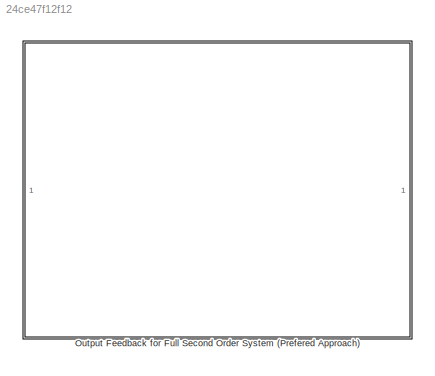
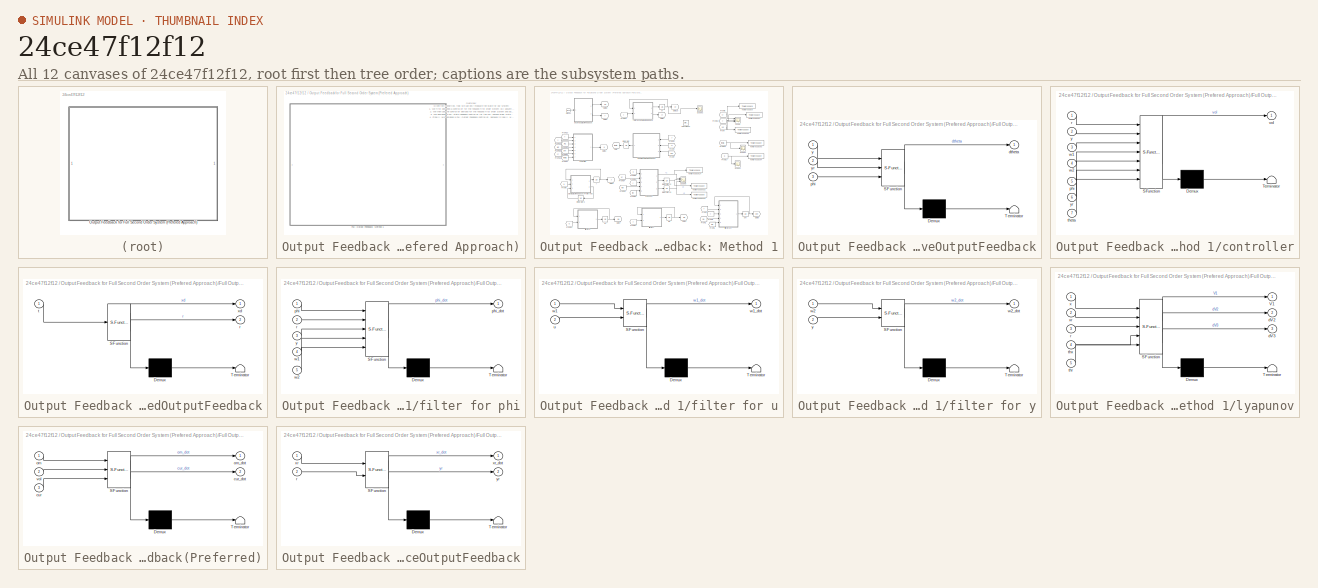
[diagram: thumbnail index - all 12 canvases of the model, root first then tree order]
MODEL slx_24ce47f12f12
KIND model
CONFIG AbsTol = auto
CONFIG EnableMultiTasking = off
CONFIG FixedStep = auto
CONFIG MaxStep = auto
CONFIG MinStep = auto
CONFIG RelTol = 1e-6
CONFIG SampleTimeConstraint = Unconstrained
CONFIG Solver = ode45
CONFIG SolverName = ode45
CONFIG StartTime = 0.0
CONFIG StopTime = 40
BLOCK [SubSystem] Output Feedback for Full Second Order System (Prefered Approach)
  Ports = []
  RequestExecContextInheritance = off
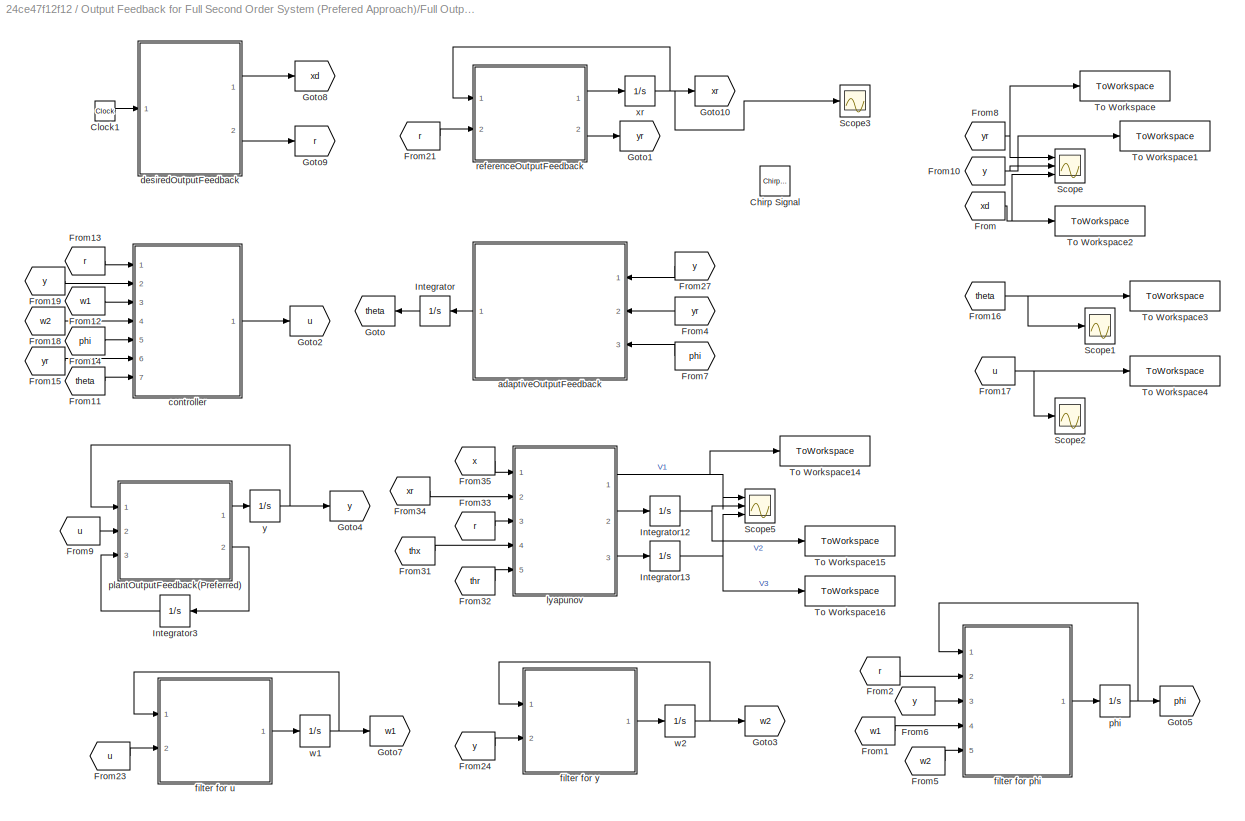
BLOCK [SubSystem] Output Feedback for Full Second Order System (Prefered Approach)/Full Output Feedback: Method 1
  Ports = []
  RequestExecContextInheritance = off
BLOCK [Reference] Output Feedback for Full Second Order System (Prefered Approach)/Full Output Feedback: Method 1/Chirp Signal  REF=simulink/Sources/Chirp Signal
  Commented = on
  Ports = [0, 1]
  SourceBlock = simulink/Sources/Chirp Signal
  SourceProductBaseCode = SL
  SourceProductName = Simulink
  SourceType = chirp
BLOCK [Clock] Output Feedback for Full Second Order System (Prefered Approach)/Full Output Feedback: Method 1/Clock1
BLOCK [From] Output Feedback for Full Second Order System (Prefered Approach)/Full Output Feedback: Method 1/From
  GotoTag = xd
BLOCK [From] Output Feedback for Full Second Order System (Prefered Approach)/Full Output Feedback: Method 1/From1
  GotoTag = w1
BLOCK [From] Output Feedback for Full Second Order System (Prefered Approach)/Full Output Feedback: Method 1/From10
  GotoTag = y
BLOCK [From] Output Feedback for Full Second Order System (Prefered Approach)/Full Output Feedback: Method 1/From11
  GotoTag = theta
BLOCK [From] Output Feedback for Full Second Order System (Prefered Approach)/Full Output Feedback: Method 1/From12
  GotoTag = w1
BLOCK [From] Output Feedback for Full Second Order System (Prefered Approach)/Full Output Feedback: Method 1/From13
  GotoTag = r
BLOCK [From] Output Feedback for Full Second Order System (Prefered Approach)/Full Output Feedback: Method 1/From14
  GotoTag = phi
BLOCK [From] Output Feedback for Full Second Order System (Prefered Approach)/Full Output Feedback: Method 1/From15
  GotoTag = yr
BLOCK [From] Output Feedback for Full Second Order System (Prefered Approach)/Full Output Feedback: Method 1/From16
  GotoTag = theta
BLOCK [From] Output Feedback for Full Second Order System (Prefered Approach)/Full Output Feedback: Method 1/From17
  GotoTag = u
BLOCK [From] Output Feedback for Full Second Order System (Prefered Approach)/Full Output Feedback: Method 1/From18
  GotoTag = w2
BLOCK [From] Output Feedback for Full Second Order System (Prefered Approach)/Full Output Feedback: Method 1/From19
  GotoTag = y
BLOCK [From] Output Feedback for Full Second Order System (Prefered Approach)/Full Output Feedback: Method 1/From2
  GotoTag = r
BLOCK [From] Output Feedback for Full Second Order System (Prefered Approach)/Full Output Feedback: Method 1/From21
  GotoTag = r
BLOCK [From] Output Feedback for Full Second Order System (Prefered Approach)/Full Output Feedback: Method 1/From23
  GotoTag = u
BLOCK [From] Output Feedback for Full Second Order System (Prefered Approach)/Full Output Feedback: Method 1/From24
  GotoTag = y
BLOCK [From] Output Feedback for Full Second Order System (Prefered Approach)/Full Output Feedback: Method 1/From27
  GotoTag = y
BLOCK [From] Output Feedback for Full Second Order System (Prefered Approach)/Full Output Feedback: Method 1/From31
  Commented = on
  GotoTag = thx
BLOCK [From] Output Feedback for Full Second Order System (Prefered Approach)/Full Output Feedback: Method 1/From32
  Commented = on
  GotoTag = thr
BLOCK [From] Output Feedback for Full Second Order System (Prefered Approach)/Full Output Feedback: Method 1/From33
  Commented = on
  GotoTag = r
BLOCK [From] Output Feedback for Full Second Order System (Prefered Approach)/Full Output Feedback: Method 1/From34
  Commented = on
  GotoTag = xr
BLOCK [From] Output Feedback for Full Second Order System (Prefered Approach)/Full Output Feedback: Method 1/From35
  Commented = on
  GotoTag = x
BLOCK [From] Output Feedback for Full Second Order System (Prefered Approach)/Full Output Feedback: Method 1/From4
  GotoTag = yr
BLOCK [From] Output Feedback for Full Second Order System (Prefered Approach)/Full Output Feedback: Method 1/From5
  GotoTag = w2
BLOCK [From] Output Feedback for Full Second Order System (Prefered Approach)/Full Output Feedback: Method 1/From6
  GotoTag = y
BLOCK [From] Output Feedback for Full Second Order System (Prefered Approach)/Full Output Feedback: Method 1/From7
  GotoTag = phi
BLOCK [From] Output Feedback for Full Second Order System (Prefered Approach)/Full Output Feedback: Method 1/From8
  GotoTag = yr
BLOCK [From] Output Feedback for Full Second Order System (Prefered Approach)/Full Output Feedback: Method 1/From9
  GotoTag = u
BLOCK [Goto] Output Feedback for Full Second Order System (Prefered Approach)/Full Output Feedback: Method 1/Goto
  GotoTag = theta
BLOCK [Goto] Output Feedback for Full Second Order System (Prefered Approach)/Full Output Feedback: Method 1/Goto1
  GotoTag = yr
BLOCK [Goto] Output Feedback for Full Second Order System (Prefered Approach)/Full Output Feedback: Method 1/Goto10
  GotoTag = xr
BLOCK [Goto] Output Feedback for Full Second Order System (Prefered Approach)/Full Output Feedback: Method 1/Goto2
  GotoTag = u
BLOCK [Goto] Output Feedback for Full Second Order System (Prefered Approach)/Full Output Feedback: Method 1/Goto3
  GotoTag = w2
BLOCK [Goto] Output Feedback for Full Second Order System (Prefered Approach)/Full Output Feedback: Method 1/Goto4
  GotoTag = y
BLOCK [Goto] Output Feedback for Full Second Order System (Prefered Approach)/Full Output Feedback: Method 1/Goto5
  GotoTag = phi
BLOCK [Goto] Output Feedback for Full Second Order System (Prefered Approach)/Full Output Feedback: Method 1/Goto7
  GotoTag = w1
BLOCK [Goto] Output Feedback for Full Second Order System (Prefered Approach)/Full Output Feedback: Method 1/Goto8
  GotoTag = xd
BLOCK [Goto] Output Feedback for Full Second Order System (Prefered Approach)/Full Output Feedback: Method 1/Goto9
  GotoTag = r
BLOCK [Integrator] Output Feedback for Full Second Order System (Prefered Approach)/Full Output Feedback: Method 1/Integrator
  InitialCondition = theta0
  Ports = [1, 1]
BLOCK [Integrator] Output Feedback for Full Second Order System (Prefered Approach)/Full Output Feedback: Method 1/Integrator12
  Commented = on
  InitialCondition = V0
  Ports = [1, 1]
BLOCK [Integrator] Output Feedback for Full Second Order System (Prefered Approach)/Full Output Feedback: Method 1/Integrator13
  Commented = on
  InitialCondition = V0
  Ports = [1, 1]
BLOCK [Integrator] Output Feedback for Full Second Order System (Prefered Approach)/Full Output Feedback: Method 1/Integrator3
  InitialCondition = cur0
  Ports = [1, 1]
BLOCK [Scope] Output Feedback for Full Second Order System (Prefered Approach)/Full Output Feedback: Method 1/Scope
  Floating = off
  NumInputPorts = 3
  Ports = [3]
  ScopeSpecificationString = Simulink.scopes.TimeScopeBlockCfg('CurrentConfiguration', extmgr.ConfigurationSet(extmgr.Configuration('Core','General UI',true),extmgr.Configuration('Core','Source UI',true),extmgr.Configuration('Sources','WiredSimulink',true,'DataLoggingVariableName','ScopeData3'),extmgr.Configuration('Visuals','Time Domain',true,'SerializedDisplays',{struct('MinYLimReal','-19.39657','MaxYLimReal','14.11376','YL...<+1563ch>
BLOCK [Scope] Output Feedback for Full Second Order System (Prefered Approach)/Full Output Feedback: Method 1/Scope1
  Floating = off
  NumInputPorts = 1
  Ports = [1]
  ScopeSpecificationString = Simulink.scopes.TimeScopeBlockCfg('CurrentConfiguration', extmgr.ConfigurationSet(extmgr.Configuration('Core','General UI',true),extmgr.Configuration('Core','Source UI',true),extmgr.Configuration('Sources','WiredSimulink',true,'DataLoggingVariableName','ScopeData4'),extmgr.Configuration('Visuals','Time Domain',true,'SerializedDisplays',{struct('MinYLimReal','-0.62217','MaxYLimReal','0.96594','YLab...<+1660ch>
BLOCK [Scope] Output Feedback for Full Second Order System (Prefered Approach)/Full Output Feedback: Method 1/Scope2
  Floating = off
  NumInputPorts = 1
  Ports = [1]
  ScopeSpecificationString = Simulink.scopes.TimeScopeBlockCfg('CurrentConfiguration', extmgr.ConfigurationSet(extmgr.Configuration('Core','General UI',true),extmgr.Configuration('Core','Source UI',true),extmgr.Configuration('Sources','WiredSimulink',true,'DataLoggingVariableName','ScopeData5'),extmgr.Configuration('Visuals','Time Domain',true,'SerializedDisplays',{struct('MinYLimReal','-10.52875','MaxYLimReal','7.86829','YLa...<+1536ch>
BLOCK [Scope] Output Feedback for Full Second Order System (Prefered Approach)/Full Output Feedback: Method 1/Scope3
  Floating = off
  NumInputPorts = 1
  Ports = [1]
  ScopeSpecificationString = Simulink.scopes.TimeScopeBlockCfg('CurrentConfiguration', extmgr.ConfigurationSet(extmgr.Configuration('Core','General UI',true),extmgr.Configuration('Core','Source UI',true),extmgr.Configuration('Sources','WiredSimulink',true,'DataLoggingVariableName','ScopeData1'),extmgr.Configuration('Visuals','Time Domain',true,'SerializedDisplays',{struct('MinYLimReal','-25.00136','MaxYLimReal','25.01222','YL...<+1427ch>
BLOCK [Scope] Output Feedback for Full Second Order System (Prefered Approach)/Full Output Feedback: Method 1/Scope5
  Commented = on
  Floating = off
  NumInputPorts = 3
  Ports = [3]
  ScopeSpecificationString = Simulink.scopes.TimeScopeBlockCfg('CurrentConfiguration', extmgr.ConfigurationSet(extmgr.Configuration('Core','General UI',true),extmgr.Configuration('Core','Source UI',true),extmgr.Configuration('Sources','WiredSimulink',true,'DataLoggingVariableName','ScopeData1'),extmgr.Configuration('Visuals','Time Domain',true,'SerializedDisplays',{struct('MinYLimReal','0.46173','MaxYLimReal','1.72087','YLabe...<+1440ch>
BLOCK [ToWorkspace] Output Feedback for Full Second Order System (Prefered Approach)/Full Output Feedback: Method 1/To Workspace
  FixptAsFi = on
  MaxDataPoints = inf
  Ports = [1]
  SampleTime = -1
  VariableName = yr
BLOCK [ToWorkspace] Output Feedback for Full Second Order System (Prefered Approach)/Full Output Feedback: Method 1/To Workspace1
  FixptAsFi = on
  MaxDataPoints = inf
  Ports = [1]
  SampleTime = -1
  VariableName = y
BLOCK [ToWorkspace] Output Feedback for Full Second Order System (Prefered Approach)/Full Output Feedback: Method 1/To Workspace14
  Commented = on
  FixptAsFi = on
  MaxDataPoints = inf
  Ports = [1]
  SampleTime = -1
  VariableName = V1
BLOCK [ToWorkspace] Output Feedback for Full Second Order System (Prefered Approach)/Full Output Feedback: Method 1/To Workspace15
  Commented = on
  FixptAsFi = on
  MaxDataPoints = inf
  Ports = [1]
  SampleTime = -1
  VariableName = V2
BLOCK [ToWorkspace] Output Feedback for Full Second Order System (Prefered Approach)/Full Output Feedback: Method 1/To Workspace16
  Commented = on
  FixptAsFi = on
  MaxDataPoints = inf
  Ports = [1]
  SampleTime = -1
  VariableName = V3
BLOCK [ToWorkspace] Output Feedback for Full Second Order System (Prefered Approach)/Full Output Feedback: Method 1/To Workspace2
  FixptAsFi = on
  MaxDataPoints = inf
  Ports = [1]
  SampleTime = -1
  VariableName = xd
BLOCK [ToWorkspace] Output Feedback for Full Second Order System (Prefered Approach)/Full Output Feedback: Method 1/To Workspace3
  FixptAsFi = on
  MaxDataPoints = inf
  Ports = [1]
  SampleTime = -1
  VariableName = theta
BLOCK [ToWorkspace] Output Feedback for Full Second Order System (Prefered Approach)/Full Output Feedback: Method 1/To Workspace4
  FixptAsFi = on
  MaxDataPoints = inf
  Ports = [1]
  SampleTime = -1
  VariableName = u
BLOCK [SubSystem] Output Feedback for Full Second Order System (Prefered Approach)/Full Output Feedback: Method 1/adaptiveOutputFeedback
  ErrorFcn = Stateflow.Translate.translate
  PermitHierarchicalResolution = ExplicitOnly
  Ports = [3, 1]
  RequestExecContextInheritance = off
  SFBlockType = MATLAB Function
  TreatAsAtomicUnit = on
BLOCK [Demux] Output Feedback for Full Second Order System (Prefered Approach)/Full Output Feedback: Method 1/adaptiveOutputFeedback/ Demux 
  Outputs = 1
  Ports = [1, 1]
BLOCK [S-Function] Output Feedback for Full Second Order System (Prefered Approach)/Full Output Feedback: Method 1/adaptiveOutputFeedback/ SFunction 
  EnableBusSupport = on
  FunctionName = sf_sfun
  Parameters = Gam,lambda_star
  PortCounts = [3 2]
  Ports = [3, 2]
  SFcnIsStateOwnerBlock = off
  SFunctionDeploymentMode = off
  Tag = Stateflow S-Function 15
BLOCK [Terminator] Output Feedback for Full Second Order System (Prefered Approach)/Full Output Feedback: Method 1/adaptiveOutputFeedback/ Terminator 
BLOCK [Outport] Output Feedback for Full Second Order System (Prefered Approach)/Full Output Feedback: Method 1/adaptiveOutputFeedback/dtheta
  IconDisplay = Port number
  VectorParamsAs1DForOutWhenUnconnected = off
BLOCK [Inport] Output Feedback for Full Second Order System (Prefered Approach)/Full Output Feedback: Method 1/adaptiveOutputFeedback/phi
  IconDisplay = Port number
  Port = 3
BLOCK [Inport] Output Feedback for Full Second Order System (Prefered Approach)/Full Output Feedback: Method 1/adaptiveOutputFeedback/y
  IconDisplay = Port number
BLOCK [Inport] Output Feedback for Full Second Order System (Prefered Approach)/Full Output Feedback: Method 1/adaptiveOutputFeedback/yr
  IconDisplay = Port number
  Port = 2
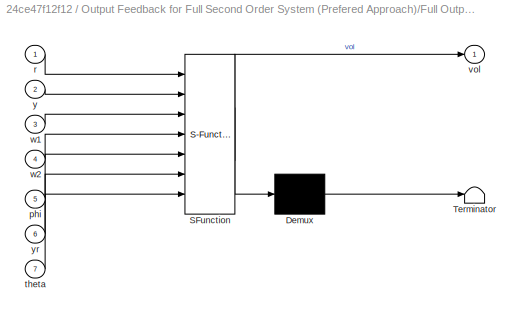
BLOCK [SubSystem] Output Feedback for Full Second Order System (Prefered Approach)/Full Output Feedback: Method 1/controller
  ErrorFcn = Stateflow.Translate.translate
  PermitHierarchicalResolution = ExplicitOnly
  Ports = [7, 1]
  RequestExecContextInheritance = off
  SFBlockType = MATLAB Function
  TreatAsAtomicUnit = on
BLOCK [Demux] Output Feedback for Full Second Order System (Prefered Approach)/Full Output Feedback: Method 1/controller/ Demux 
  Outputs = 1
  Ports = [1, 1]
BLOCK [S-Function] Output Feedback for Full Second Order System (Prefered Approach)/Full Output Feedback: Method 1/controller/ SFunction 
  EnableBusSupport = on
  FunctionName = sf_sfun
  Parameters = Gam,lambda_star
  PortCounts = [7 2]
  Ports = [7, 2]
  SFcnIsStateOwnerBlock = off
  SFunctionDeploymentMode = off
  Tag = Stateflow S-Function 20
BLOCK [Terminator] Output Feedback for Full Second Order System (Prefered Approach)/Full Output Feedback: Method 1/controller/ Terminator 
BLOCK [Inport] Output Feedback for Full Second Order System (Prefered Approach)/Full Output Feedback: Method 1/controller/phi
  IconDisplay = Port number
  Port = 5
BLOCK [Inport] Output Feedback for Full Second Order System (Prefered Approach)/Full Output Feedback: Method 1/controller/r
  IconDisplay = Port number
BLOCK [Inport] Output Feedback for Full Second Order System (Prefered Approach)/Full Output Feedback: Method 1/controller/theta
  IconDisplay = Port number
  Port = 7
BLOCK [Outport] Output Feedback for Full Second Order System (Prefered Approach)/Full Output Feedback: Method 1/controller/vol
  IconDisplay = Port number
  VectorParamsAs1DForOutWhenUnconnected = off
BLOCK [Inport] Output Feedback for Full Second Order System (Prefered Approach)/Full Output Feedback: Method 1/controller/w1
  IconDisplay = Port number
  Port = 3
BLOCK [Inport] Output Feedback for Full Second Order System (Prefered Approach)/Full Output Feedback: Method 1/controller/w2
  IconDisplay = Port number
  Port = 4
BLOCK [Inport] Output Feedback for Full Second Order System (Prefered Approach)/Full Output Feedback: Method 1/controller/y
  IconDisplay = Port number
  Port = 2
BLOCK [Inport] Output Feedback for Full Second Order System (Prefered Approach)/Full Output Feedback: Method 1/controller/yr
  IconDisplay = Port number
  Port = 6
BLOCK [SubSystem] Output Feedback for Full Second Order System (Prefered Approach)/Full Output Feedback: Method 1/desiredOutputFeedback
  ErrorFcn = Stateflow.Translate.translate
  PermitHierarchicalResolution = ExplicitOnly
  Ports = [1, 2]
  RequestExecContextInheritance = off
  SFBlockType = MATLAB Function
  TreatAsAtomicUnit = on
BLOCK [Demux] Output Feedback for Full Second Order System (Prefered Approach)/Full Output Feedback: Method 1/desiredOutputFeedback/ Demux 
  Outputs = 1
  Ports = [1, 1]
BLOCK [S-Function] Output Feedback for Full Second Order System (Prefered Approach)/Full Output Feedback: Method 1/desiredOutputFeedback/ SFunction 
  EnableBusSupport = on
  FunctionName = sf_sfun
  Parameters = Ar,Br
  PortCounts = [1 3]
  Ports = [1, 3]
  SFcnIsStateOwnerBlock = off
  SFunctionDeploymentMode = off
  Tag = Stateflow S-Function 17
BLOCK [Terminator] Output Feedback for Full Second Order System (Prefered Approach)/Full Output Feedback: Method 1/desiredOutputFeedback/ Terminator 
BLOCK [Outport] Output Feedback for Full Second Order System (Prefered Approach)/Full Output Feedback: Method 1/desiredOutputFeedback/r
  IconDisplay = Port number
  Port = 2
  VectorParamsAs1DForOutWhenUnconnected = off
BLOCK [Inport] Output Feedback for Full Second Order System (Prefered Approach)/Full Output Feedback: Method 1/desiredOutputFeedback/t
  IconDisplay = Port number
BLOCK [Outport] Output Feedback for Full Second Order System (Prefered Approach)/Full Output Feedback: Method 1/desiredOutputFeedback/xd
  IconDisplay = Port number
  VectorParamsAs1DForOutWhenUnconnected = off
BLOCK [SubSystem] Output Feedback for Full Second Order System (Prefered Approach)/Full Output Feedback: Method 1/filter for phi
  ErrorFcn = Stateflow.Translate.translate
  PermitHierarchicalResolution = ExplicitOnly
  Ports = [5, 1]
  RequestExecContextInheritance = off
  SFBlockType = MATLAB Function
  TreatAsAtomicUnit = on
BLOCK [Demux] Output Feedback for Full Second Order System (Prefered Approach)/Full Output Feedback: Method 1/filter for phi/ Demux 
  Outputs = 1
  Ports = [1, 1]
BLOCK [S-Function] Output Feedback for Full Second Order System (Prefered Approach)/Full Output Feedback: Method 1/filter for phi/ SFunction 
  EnableBusSupport = on
  FunctionName = sf_sfun
  Parameters = p0
  PortCounts = [5 2]
  Ports = [5, 2]
  SFcnIsStateOwnerBlock = off
  SFunctionDeploymentMode = off
  Tag = Stateflow S-Function 16
BLOCK [Terminator] Output Feedback for Full Second Order System (Prefered Approach)/Full Output Feedback: Method 1/filter for phi/ Terminator 
BLOCK [Inport] Output Feedback for Full Second Order System (Prefered Approach)/Full Output Feedback: Method 1/filter for phi/phi
  IconDisplay = Port number
BLOCK [Outport] Output Feedback for Full Second Order System (Prefered Approach)/Full Output Feedback: Method 1/filter for phi/phi_dot
  IconDisplay = Port number
  VectorParamsAs1DForOutWhenUnconnected = off
BLOCK [Inport] Output Feedback for Full Second Order System (Prefered Approach)/Full Output Feedback: Method 1/filter for phi/r
  IconDisplay = Port number
  Port = 2
BLOCK [Inport] Output Feedback for Full Second Order System (Prefered Approach)/Full Output Feedback: Method 1/filter for phi/w1
  IconDisplay = Port number
  Port = 4
BLOCK [Inport] Output Feedback for Full Second Order System (Prefered Approach)/Full Output Feedback: Method 1/filter for phi/w2
  IconDisplay = Port number
  Port = 5
BLOCK [Inport] Output Feedback for Full Second Order System (Prefered Approach)/Full Output Feedback: Method 1/filter for phi/y
  IconDisplay = Port number
  Port = 3
BLOCK [SubSystem] Output Feedback for Full Second Order System (Prefered Approach)/Full Output Feedback: Method 1/filter for u
  ErrorFcn = Stateflow.Translate.translate
  PermitHierarchicalResolution = ExplicitOnly
  Ports = [2, 1]
  RequestExecContextInheritance = off
  SFBlockType = MATLAB Function
  TreatAsAtomicUnit = on
BLOCK [Demux] Output Feedback for Full Second Order System (Prefered Approach)/Full Output Feedback: Method 1/filter for u/ Demux 
  Outputs = 1
  Ports = [1, 1]
BLOCK [S-Function] Output Feedback for Full Second Order System (Prefered Approach)/Full Output Feedback: Method 1/filter for u/ SFunction 
  EnableBusSupport = on
  FunctionName = sf_sfun
  Parameters = Lambda,linp
  PortCounts = [2 2]
  Ports = [2, 2]
  SFcnIsStateOwnerBlock = off
  SFunctionDeploymentMode = off
  Tag = Stateflow S-Function 14
BLOCK [Terminator] Output Feedback for Full Second Order System (Prefered Approach)/Full Output Feedback: Method 1/filter for u/ Terminator 
BLOCK [Inport] Output Feedback for Full Second Order System (Prefered Approach)/Full Output Feedback: Method 1/filter for u/u
  IconDisplay = Port number
  Port = 2
BLOCK [Inport] Output Feedback for Full Second Order System (Prefered Approach)/Full Output Feedback: Method 1/filter for u/w1
  IconDisplay = Port number
BLOCK [Outport] Output Feedback for Full Second Order System (Prefered Approach)/Full Output Feedback: Method 1/filter for u/w1_dot
  IconDisplay = Port number
  VectorParamsAs1DForOutWhenUnconnected = off
BLOCK [SubSystem] Output Feedback for Full Second Order System (Prefered Approach)/Full Output Feedback: Method 1/filter for y
  ErrorFcn = Stateflow.Translate.translate
  PermitHierarchicalResolution = ExplicitOnly
  Ports = [2, 1]
  RequestExecContextInheritance = off
  SFBlockType = MATLAB Function
  TreatAsAtomicUnit = on
BLOCK [Demux] Output Feedback for Full Second Order System (Prefered Approach)/Full Output Feedback: Method 1/filter for y/ Demux 
  Outputs = 1
  Ports = [1, 1]
BLOCK [S-Function] Output Feedback for Full Second Order System (Prefered Approach)/Full Output Feedback: Method 1/filter for y/ SFunction 
  EnableBusSupport = on
  FunctionName = sf_sfun
  Parameters = Lambda,linp
  PortCounts = [2 2]
  Ports = [2, 2]
  SFcnIsStateOwnerBlock = off
  SFunctionDeploymentMode = off
  Tag = Stateflow S-Function 22
BLOCK [Terminator] Output Feedback for Full Second Order System (Prefered Approach)/Full Output Feedback: Method 1/filter for y/ Terminator 
BLOCK [Inport] Output Feedback for Full Second Order System (Prefered Approach)/Full Output Feedback: Method 1/filter for y/w2
  IconDisplay = Port number
BLOCK [Outport] Output Feedback for Full Second Order System (Prefered Approach)/Full Output Feedback: Method 1/filter for y/w2_dot
  IconDisplay = Port number
  VectorParamsAs1DForOutWhenUnconnected = off
BLOCK [Inport] Output Feedback for Full Second Order System (Prefered Approach)/Full Output Feedback: Method 1/filter for y/y
  IconDisplay = Port number
  Port = 2
BLOCK [SubSystem] Output Feedback for Full Second Order System (Prefered Approach)/Full Output Feedback: Method 1/lyapunov
  Commented = on
  ErrorFcn = Stateflow.Translate.translate
  PermitHierarchicalResolution = ExplicitOnly
  Ports = [5, 3]
  RequestExecContextInheritance = off
  SFBlockType = MATLAB Function
  TreatAsAtomicUnit = on
BLOCK [Demux] Output Feedback for Full Second Order System (Prefered Approach)/Full Output Feedback: Method 1/lyapunov/ Demux 
  Outputs = 1
  Ports = [1, 1]
BLOCK [S-Function] Output Feedback for Full Second Order System (Prefered Approach)/Full Output Feedback: Method 1/lyapunov/ SFunction 
  EnableBusSupport = on
  FunctionName = sf_sfun
  Parameters = Ar,Astar,Br,Bstar,Gam_r,Gam_x,P,Q,Tr_star,Tx_star
  PortCounts = [5 4]
  Ports = [5, 4]
  SFcnIsStateOwnerBlock = off
  SFunctionDeploymentMode = off
  Tag = Stateflow S-Function 18
BLOCK [Terminator] Output Feedback for Full Second Order System (Prefered Approach)/Full Output Feedback: Method 1/lyapunov/ Terminator 
BLOCK [Outport] Output Feedback for Full Second Order System (Prefered Approach)/Full Output Feedback: Method 1/lyapunov/V1
  IconDisplay = Port number
  VectorParamsAs1DForOutWhenUnconnected = off
BLOCK [Outport] Output Feedback for Full Second Order System (Prefered Approach)/Full Output Feedback: Method 1/lyapunov/dV2
  IconDisplay = Port number
  Port = 2
  VectorParamsAs1DForOutWhenUnconnected = off
BLOCK [Outport] Output Feedback for Full Second Order System (Prefered Approach)/Full Output Feedback: Method 1/lyapunov/dV3
  IconDisplay = Port number
  Port = 3
  VectorParamsAs1DForOutWhenUnconnected = off
BLOCK [Inport] Output Feedback for Full Second Order System (Prefered Approach)/Full Output Feedback: Method 1/lyapunov/r
  IconDisplay = Port number
  Port = 3
BLOCK [Inport] Output Feedback for Full Second Order System (Prefered Approach)/Full Output Feedback: Method 1/lyapunov/thr
  IconDisplay = Port number
  Port = 5
BLOCK [Inport] Output Feedback for Full Second Order System (Prefered Approach)/Full Output Feedback: Method 1/lyapunov/thx
  IconDisplay = Port number
  Port = 4
BLOCK [Inport] Output Feedback for Full Second Order System (Prefered Approach)/Full Output Feedback: Method 1/lyapunov/x
  IconDisplay = Port number
BLOCK [Inport] Output Feedback for Full Second Order System (Prefered Approach)/Full Output Feedback: Method 1/lyapunov/xr
  IconDisplay = Port number
  Port = 2
BLOCK [Integrator] Output Feedback for Full Second Order System (Prefered Approach)/Full Output Feedback: Method 1/phi
  InitialCondition = phi0
  Ports = [1, 1]
BLOCK [SubSystem] Output Feedback for Full Second Order System (Prefered Approach)/Full Output Feedback: Method 1/plantOutputFeedback(Preferred)
  ErrorFcn = Stateflow.Translate.translate
  PermitHierarchicalResolution = ExplicitOnly
  Ports = [3, 2]
  RequestExecContextInheritance = off
  SFBlockType = MATLAB Function
  TreatAsAtomicUnit = on
BLOCK [Demux] Output Feedback for Full Second Order System (Prefered Approach)/Full Output Feedback: Method 1/plantOutputFeedback(Preferred)/ Demux 
  Outputs = 1
  Ports = [1, 1]
BLOCK [S-Function] Output Feedback for Full Second Order System (Prefered Approach)/Full Output Feedback: Method 1/plantOutputFeedback(Preferred)/ SFunction 
  EnableBusSupport = on
  FunctionName = sf_sfun
  Parameters = B,J,K,L,R
  PortCounts = [3 3]
  Ports = [3, 3]
  SFcnIsStateOwnerBlock = off
  SFunctionDeploymentMode = off
  Tag = Stateflow S-Function 23
BLOCK [Terminator] Output Feedback for Full Second Order System (Prefered Approach)/Full Output Feedback: Method 1/plantOutputFeedback(Preferred)/ Terminator 
BLOCK [Inport] Output Feedback for Full Second Order System (Prefered Approach)/Full Output Feedback: Method 1/plantOutputFeedback(Preferred)/cur
  IconDisplay = Port number
  Port = 3
BLOCK [Outport] Output Feedback for Full Second Order System (Prefered Approach)/Full Output Feedback: Method 1/plantOutputFeedback(Preferred)/cur_dot
  IconDisplay = Port number
  Port = 2
  VectorParamsAs1DForOutWhenUnconnected = off
BLOCK [Inport] Output Feedback for Full Second Order System (Prefered Approach)/Full Output Feedback: Method 1/plantOutputFeedback(Preferred)/om
  IconDisplay = Port number
BLOCK [Outport] Output Feedback for Full Second Order System (Prefered Approach)/Full Output Feedback: Method 1/plantOutputFeedback(Preferred)/om_dot
  IconDisplay = Port number
  VectorParamsAs1DForOutWhenUnconnected = off
BLOCK [Inport] Output Feedback for Full Second Order System (Prefered Approach)/Full Output Feedback: Method 1/plantOutputFeedback(Preferred)/vol
  IconDisplay = Port number
  Port = 2
BLOCK [SubSystem] Output Feedback for Full Second Order System (Prefered Approach)/Full Output Feedback: Method 1/referenceOutputFeedback
  ErrorFcn = Stateflow.Translate.translate
  PermitHierarchicalResolution = ExplicitOnly
  Ports = [2, 2]
  RequestExecContextInheritance = off
  SFBlockType = MATLAB Function
  TreatAsAtomicUnit = on
BLOCK [Demux] Output Feedback for Full Second Order System (Prefered Approach)/Full Output Feedback: Method 1/referenceOutputFeedback/ Demux 
  Outputs = 1
  Ports = [1, 1]
BLOCK [S-Function] Output Feedback for Full Second Order System (Prefered Approach)/Full Output Feedback: Method 1/referenceOutputFeedback/ SFunction 
  EnableBusSupport = on
  FunctionName = sf_sfun
  Parameters = Ar,Br
  PortCounts = [2 3]
  Ports = [2, 3]
  SFcnIsStateOwnerBlock = off
  SFunctionDeploymentMode = off
  Tag = Stateflow S-Function 21
BLOCK [Terminator] Output Feedback for Full Second Order System (Prefered Approach)/Full Output Feedback: Method 1/referenceOutputFeedback/ Terminator 
BLOCK [Inport] Output Feedback for Full Second Order System (Prefered Approach)/Full Output Feedback: Method 1/referenceOutputFeedback/r
  IconDisplay = Port number
  Port = 2
BLOCK [Inport] Output Feedback for Full Second Order System (Prefered Approach)/Full Output Feedback: Method 1/referenceOutputFeedback/xr
  IconDisplay = Port number
BLOCK [Outport] Output Feedback for Full Second Order System (Prefered Approach)/Full Output Feedback: Method 1/referenceOutputFeedback/xr_dot
  IconDisplay = Port number
  VectorParamsAs1DForOutWhenUnconnected = off
BLOCK [Outport] Output Feedback for Full Second Order System (Prefered Approach)/Full Output Feedback: Method 1/referenceOutputFeedback/yr
  IconDisplay = Port number
  Port = 2
BLOCK [Integrator] Output Feedback for Full Second Order System (Prefered Approach)/Full Output Feedback: Method 1/w1
  InitialCondition = w10
  Ports = [1, 1]
BLOCK [Integrator] Output Feedback for Full Second Order System (Prefered Approach)/Full Output Feedback: Method 1/w2
  InitialCondition = w20
  Ports = [1, 1]
BLOCK [Integrator] Output Feedback for Full Second Order System (Prefered Approach)/Full Output Feedback: Method 1/xr
  InitialCondition = Xr0
  Ports = [1, 1]
BLOCK [Integrator] Output Feedback for Full Second Order System (Prefered Approach)/Full Output Feedback: Method 1/y
  InitialCondition = om0
  Ports = [1, 1]
ANNOTATION Output Feedback for Full Second Order System (Prefered Approach): Overview: Given the Condition, that we can only measure the state for our system: 1. We first designed a controller for the reduced first order system (By assuming L = 0 , because the given L value is very small) also known as the scalar system. After using appropriate tuning parameters, adding projection to the system and making the system adaptive. We see that the system is working well. ( Check...<+1118ch>
LINE Output Feedback for Full Second Order System (Prefered Approach)/Full Output Feedback: Method 1/Clock1:1 -> Output Feedback for Full Second Order System (Prefered Approach)/Full Output Feedback: Method 1/desiredOutputFeedback:1
NET Output Feedback for Full Second Order System (Prefered Approach)/Full Output Feedback: Method 1/From10:1 -> Output Feedback for Full Second Order System (Prefered Approach)/Full Output Feedback: Method 1/Scope:2, Output Feedback for Full Second Order System (Prefered Approach)/Full Output Feedback: Method 1/To Workspace1:1
LINE Output Feedback for Full Second Order System (Prefered Approach)/Full Output Feedback: Method 1/From11:1 -> Output Feedback for Full Second Order System (Prefered Approach)/Full Output Feedback: Method 1/controller:7
LINE Output Feedback for Full Second Order System (Prefered Approach)/Full Output Feedback: Method 1/From12:1 -> Output Feedback for Full Second Order System (Prefered Approach)/Full Output Feedback: Method 1/controller:3
LINE Output Feedback for Full Second Order System (Prefered Approach)/Full Output Feedback: Method 1/From13:1 -> Output Feedback for Full Second Order System (Prefered Approach)/Full Output Feedback: Method 1/controller:1
LINE Output Feedback for Full Second Order System (Prefered Approach)/Full Output Feedback: Method 1/From14:1 -> Output Feedback for Full Second Order System (Prefered Approach)/Full Output Feedback: Method 1/controller:5
LINE Output Feedback for Full Second Order System (Prefered Approach)/Full Output Feedback: Method 1/From15:1 -> Output Feedback for Full Second Order System (Prefered Approach)/Full Output Feedback: Method 1/controller:6
NET Output Feedback for Full Second Order System (Prefered Approach)/Full Output Feedback: Method 1/From16:1 -> Output Feedback for Full Second Order System (Prefered Approach)/Full Output Feedback: Method 1/Scope1:1, Output Feedback for Full Second Order System (Prefered Approach)/Full Output Feedback: Method 1/To Workspace3:1
NET Output Feedback for Full Second Order System (Prefered Approach)/Full Output Feedback: Method 1/From17:1 -> Output Feedback for Full Second Order System (Prefered Approach)/Full Output Feedback: Method 1/Scope2:1, Output Feedback for Full Second Order System (Prefered Approach)/Full Output Feedback: Method 1/To Workspace4:1
LINE Output Feedback for Full Second Order System (Prefered Approach)/Full Output Feedback: Method 1/From18:1 -> Output Feedback for Full Second Order System (Prefered Approach)/Full Output Feedback: Method 1/controller:4
LINE Output Feedback for Full Second Order System (Prefered Approach)/Full Output Feedback: Method 1/From19:1 -> Output Feedback for Full Second Order System (Prefered Approach)/Full Output Feedback: Method 1/controller:2
LINE Output Feedback for Full Second Order System (Prefered Approach)/Full Output Feedback: Method 1/From1:1 -> Output Feedback for Full Second Order System (Prefered Approach)/Full Output Feedback: Method 1/filter for phi:4
LINE Output Feedback for Full Second Order System (Prefered Approach)/Full Output Feedback: Method 1/From21:1 -> Output Feedback for Full Second Order System (Prefered Approach)/Full Output Feedback: Method 1/referenceOutputFeedback:2
LINE Output Feedback for Full Second Order System (Prefered Approach)/Full Output Feedback: Method 1/From23:1 -> Output Feedback for Full Second Order System (Prefered Approach)/Full Output Feedback: Method 1/filter for u:2
LINE Output Feedback for Full Second Order System (Prefered Approach)/Full Output Feedback: Method 1/From24:1 -> Output Feedback for Full Second Order System (Prefered Approach)/Full Output Feedback: Method 1/filter for y:2
LINE Output Feedback for Full Second Order System (Prefered Approach)/Full Output Feedback: Method 1/From27:1 -> Output Feedback for Full Second Order System (Prefered Approach)/Full Output Feedback: Method 1/adaptiveOutputFeedback:1
LINE Output Feedback for Full Second Order System (Prefered Approach)/Full Output Feedback: Method 1/From2:1 -> Output Feedback for Full Second Order System (Prefered Approach)/Full Output Feedback: Method 1/filter for phi:2
LINE Output Feedback for Full Second Order System (Prefered Approach)/Full Output Feedback: Method 1/From31:1 -> Output Feedback for Full Second Order System (Prefered Approach)/Full Output Feedback: Method 1/lyapunov:4
LINE Output Feedback for Full Second Order System (Prefered Approach)/Full Output Feedback: Method 1/From32:1 -> Output Feedback for Full Second Order System (Prefered Approach)/Full Output Feedback: Method 1/lyapunov:5
LINE Output Feedback for Full Second Order System (Prefered Approach)/Full Output Feedback: Method 1/From33:1 -> Output Feedback for Full Second Order System (Prefered Approach)/Full Output Feedback: Method 1/lyapunov:3
LINE Output Feedback for Full Second Order System (Prefered Approach)/Full Output Feedback: Method 1/From34:1 -> Output Feedback for Full Second Order System (Prefered Approach)/Full Output Feedback: Method 1/lyapunov:2
LINE Output Feedback for Full Second Order System (Prefered Approach)/Full Output Feedback: Method 1/From35:1 -> Output Feedback for Full Second Order System (Prefered Approach)/Full Output Feedback: Method 1/lyapunov:1
LINE Output Feedback for Full Second Order System (Prefered Approach)/Full Output Feedback: Method 1/From4:1 -> Output Feedback for Full Second Order System (Prefered Approach)/Full Output Feedback: Method 1/adaptiveOutputFeedback:2
LINE Output Feedback for Full Second Order System (Prefered Approach)/Full Output Feedback: Method 1/From5:1 -> Output Feedback for Full Second Order System (Prefered Approach)/Full Output Feedback: Method 1/filter for phi:5
LINE Output Feedback for Full Second Order System (Prefered Approach)/Full Output Feedback: Method 1/From6:1 -> Output Feedback for Full Second Order System (Prefered Approach)/Full Output Feedback: Method 1/filter for phi:3
LINE Output Feedback for Full Second Order System (Prefered Approach)/Full Output Feedback: Method 1/From7:1 -> Output Feedback for Full Second Order System (Prefered Approach)/Full Output Feedback: Method 1/adaptiveOutputFeedback:3
NET Output Feedback for Full Second Order System (Prefered Approach)/Full Output Feedback: Method 1/From8:1 -> Output Feedback for Full Second Order System (Prefered Approach)/Full Output Feedback: Method 1/Scope:1, Output Feedback for Full Second Order System (Prefered Approach)/Full Output Feedback: Method 1/To Workspace:1
LINE Output Feedback for Full Second Order System (Prefered Approach)/Full Output Feedback: Method 1/From9:1 -> Output Feedback for Full Second Order System (Prefered Approach)/Full Output Feedback: Method 1/plantOutputFeedback(Preferred):2
NET Output Feedback for Full Second Order System (Prefered Approach)/Full Output Feedback: Method 1/From:1 -> Output Feedback for Full Second Order System (Prefered Approach)/Full Output Feedback: Method 1/Scope:3, Output Feedback for Full Second Order System (Prefered Approach)/Full Output Feedback: Method 1/To Workspace2:1
NET Output Feedback for Full Second Order System (Prefered Approach)/Full Output Feedback: Method 1/Integrator12:1 -> Output Feedback for Full Second Order System (Prefered Approach)/Full Output Feedback: Method 1/Scope5:2, Output Feedback for Full Second Order System (Prefered Approach)/Full Output Feedback: Method 1/To Workspace15:1
NET Output Feedback for Full Second Order System (Prefered Approach)/Full Output Feedback: Method 1/Integrator13:1 -> Output Feedback for Full Second Order System (Prefered Approach)/Full Output Feedback: Method 1/Scope5:3, Output Feedback for Full Second Order System (Prefered Approach)/Full Output Feedback: Method 1/To Workspace16:1
LINE Output Feedback for Full Second Order System (Prefered Approach)/Full Output Feedback: Method 1/Integrator3:1 -> Output Feedback for Full Second Order System (Prefered Approach)/Full Output Feedback: Method 1/plantOutputFeedback(Preferred):3
LINE Output Feedback for Full Second Order System (Prefered Approach)/Full Output Feedback: Method 1/Integrator:1 -> Output Feedback for Full Second Order System (Prefered Approach)/Full Output Feedback: Method 1/Goto:1
LINE Output Feedback for Full Second Order System (Prefered Approach)/Full Output Feedback: Method 1/adaptiveOutputFeedback:1 -> Output Feedback for Full Second Order System (Prefered Approach)/Full Output Feedback: Method 1/Integrator:1
LINE Output Feedback for Full Second Order System (Prefered Approach)/Full Output Feedback: Method 1/controller:1 -> Output Feedback for Full Second Order System (Prefered Approach)/Full Output Feedback: Method 1/Goto2:1
LINE Output Feedback for Full Second Order System (Prefered Approach)/Full Output Feedback: Method 1/desiredOutputFeedback:1 -> Output Feedback for Full Second Order System (Prefered Approach)/Full Output Feedback: Method 1/Goto8:1
LINE Output Feedback for Full Second Order System (Prefered Approach)/Full Output Feedback: Method 1/desiredOutputFeedback:2 -> Output Feedback for Full Second Order System (Prefered Approach)/Full Output Feedback: Method 1/Goto9:1
LINE Output Feedback for Full Second Order System (Prefered Approach)/Full Output Feedback: Method 1/filter for phi:1 -> Output Feedback for Full Second Order System (Prefered Approach)/Full Output Feedback: Method 1/phi:1
LINE Output Feedback for Full Second Order System (Prefered Approach)/Full Output Feedback: Method 1/filter for u:1 -> Output Feedback for Full Second Order System (Prefered Approach)/Full Output Feedback: Method 1/w1:1
LINE Output Feedback for Full Second Order System (Prefered Approach)/Full Output Feedback: Method 1/filter for y:1 -> Output Feedback for Full Second Order System (Prefered Approach)/Full Output Feedback: Method 1/w2:1
NET Output Feedback for Full Second Order System (Prefered Approach)/Full Output Feedback: Method 1/lyapunov:1 -> Output Feedback for Full Second Order System (Prefered Approach)/Full Output Feedback: Method 1/Scope5:1, Output Feedback for Full Second Order System (Prefered Approach)/Full Output Feedback: Method 1/To Workspace14:1
LINE Output Feedback for Full Second Order System (Prefered Approach)/Full Output Feedback: Method 1/lyapunov:2 -> Output Feedback for Full Second Order System (Prefered Approach)/Full Output Feedback: Method 1/Integrator12:1
LINE Output Feedback for Full Second Order System (Prefered Approach)/Full Output Feedback: Method 1/lyapunov:3 -> Output Feedback for Full Second Order System (Prefered Approach)/Full Output Feedback: Method 1/Integrator13:1
NET Output Feedback for Full Second Order System (Prefered Approach)/Full Output Feedback: Method 1/phi:1 -> Output Feedback for Full Second Order System (Prefered Approach)/Full Output Feedback: Method 1/Goto5:1, Output Feedback for Full Second Order System (Prefered Approach)/Full Output Feedback: Method 1/filter for phi:1
LINE Output Feedback for Full Second Order System (Prefered Approach)/Full Output Feedback: Method 1/plantOutputFeedback(Preferred):1 -> Output Feedback for Full Second Order System (Prefered Approach)/Full Output Feedback: Method 1/y:1
LINE Output Feedback for Full Second Order System (Prefered Approach)/Full Output Feedback: Method 1/plantOutputFeedback(Preferred):2 -> Output Feedback for Full Second Order System (Prefered Approach)/Full Output Feedback: Method 1/Integrator3:1
LINE Output Feedback for Full Second Order System (Prefered Approach)/Full Output Feedback: Method 1/referenceOutputFeedback:1 -> Output Feedback for Full Second Order System (Prefered Approach)/Full Output Feedback: Method 1/xr:1
LINE Output Feedback for Full Second Order System (Prefered Approach)/Full Output Feedback: Method 1/referenceOutputFeedback:2 -> Output Feedback for Full Second Order System (Prefered Approach)/Full Output Feedback: Method 1/Goto1:1
NET Output Feedback for Full Second Order System (Prefered Approach)/Full Output Feedback: Method 1/w1:1 -> Output Feedback for Full Second Order System (Prefered Approach)/Full Output Feedback: Method 1/Goto7:1, Output Feedback for Full Second Order System (Prefered Approach)/Full Output Feedback: Method 1/filter for u:1
NET Output Feedback for Full Second Order System (Prefered Approach)/Full Output Feedback: Method 1/w2:1 -> Output Feedback for Full Second Order System (Prefered Approach)/Full Output Feedback: Method 1/Goto3:1, Output Feedback for Full Second Order System (Prefered Approach)/Full Output Feedback: Method 1/filter for y:1
NET Output Feedback for Full Second Order System (Prefered Approach)/Full Output Feedback: Method 1/xr:1 -> Output Feedback for Full Second Order System (Prefered Approach)/Full Output Feedback: Method 1/Goto10:1, Output Feedback for Full Second Order System (Prefered Approach)/Full Output Feedback: Method 1/Scope3:1, Output Feedback for Full Second Order System (Prefered Approach)/Full Output Feedback: Method 1/referenceOutputFeedback:1
NET Output Feedback for Full Second Order System (Prefered Approach)/Full Output Feedback: Method 1/y:1 -> Output Feedback for Full Second Order System (Prefered Approach)/Full Output Feedback: Method 1/Goto4:1, Output Feedback for Full Second Order System (Prefered Approach)/Full Output Feedback: Method 1/plantOutputFeedback(Preferred):1
note: NET lines group one-source signal fan-out (src -> all destinations, sorted); 1:1 wires keep LINE
CHART Output Feedback for Full Second Order System (Prefered Approach)/Full Output Feedback: Method 1/filter for u states=1 transitions=1
  STATE_LABEL 'eML_blk_kernel()'
  STATE_LABEL 'SCRIPT:\nfunction w1_dot = filter_for_u(w1,u,linp, Lambda)\n\nw1_dot = Lambda*w1 + linp*u; % linp is linput\n% w1 is our filter for u'
CHART Output Feedback for Full Second Order System (Prefered Approach)/Full Output Feedback: Method 1/adaptiveOutputFeedback states=1 transitions=1
  STATE_LABEL 'eML_blk_kernel()'
  STATE_LABEL 'SCRIPT:\nfunction dtheta = adaptive(y,yr,phi,Gam, lambda_star)\n\ne = y - yr;\n\ndtheta = -(Gam*phi)*e*sign(lambda_star);\n\n%%%%%%%%%%%%%%%%%%%%%%%%%%%%%%%%%%%%%%%%%%%\n%------ Projection Algorithm Stuff  -----%\n%%%%%%%%%%%%%%%%%%%%%%%%%%%%%%%%%%%%%%%%%%%\n% theta = [thx; thr];\n% dtheta = [dthx; dthr];\n% \n% % Smooth Convex Function Pg. 121 "Adaptive Control Notes"\n% convF = (theta\'*theta - th_max^2)/(eps_...<+754ch>'
CHART Output Feedback for Full Second Order System (Prefered Approach)/Full Output Feedback: Method 1/filter for phi states=1 transitions=1
  STATE_LABEL 'eML_blk_kernel()'
  STATE_LABEL 'SCRIPT:\n%%%%%%%%%%%%%%%%%%%%%%%%%%%%%%%%%%%%%%%%%%%%%%%%\n%------ Method 1: Taking the system as is -----%\n%%%%%%%%%%%%%%%%%%%%%%%%%%%%%%%%%%%%%%%%%%%%%%%%\n\nfunction phi_dot = filter_for_phi(phi,r,y,w1,w2,p0)\n\nphi_dot = -p0*phi + [r ;  w1 ; y ; w2];\n\n\n'
CHART Output Feedback for Full Second Order System (Prefered Approach)/Full Output Feedback: Method 1/desiredOutputFeedback states=1 transitions=1
  STATE_LABEL 'eML_blk_kernel()'
  STATE_LABEL 'SCRIPT:\nfunction [xd,r] = desiredSecondOrder(t,Ar, Br)\nxd = 10*sin(2*t);\ndxd = 20*cos(2*t);\nddxd = -40*sin(2*t);\n\n% r = (ddxd - ar1*xd - ar2*dxd)/br;\nr = (ddxd - Ar(2,1)*xd - Ar(2,2)*dxd)/Br(2,1);'
CHART Output Feedback for Full Second Order System (Prefered Approach)/Full Output Feedback: Method 1/lyapunov states=1 transitions=1
  STATE_LABEL 'eML_blk_kernel()'
  STATE_LABEL "SCRIPT:\nfunction [V1,dV2,dV3] = lyapunov(x,xr,r,thx,thr,P,Q,Gam_x,Gam_r,...\n                                 Astar,Br,Tx_star, Tr_star, Bstar, Ar)\n\nP2 = P(:,2);\n\ne = x - xr;\ndV3= -e'*Q*e;\n\ndthx = -Gam_x*(e'*P2)*x*sign(Bstar(2,1)); % -Gam_x*(e'*P2)*x*sign(bstar);\ndthr = -Gam_r*(e'*P2)*r*sign(Bstar(2,1)); % -gam_r*(e'*P2)*r*sign(bstar);\n\nvol = thx'*x + thr*r;\n \nxr_dot = Ar*xr + Br*r;    % Ar*xr + [0...<+403ch>"
CHART Output Feedback for Full Second Order System (Prefered Approach)/Full Output Feedback: Method 1/controller states=1 transitions=1
  STATE_LABEL 'eML_blk_kernel()'
  STATE_LABEL "SCRIPT:\n%%%%%%%%%%%%%%%%%%%%%%%%%%%%%%%%%%%%%%%%%%%%%%%%\n%------ Method 1: Taking the system as is -----%\n%%%%%%%%%%%%%%%%%%%%%%%%%%%%%%%%%%%%%%%%%%%%%%%%\n\nfunction vol = controller(r,y,w1,w2,phi,yr,lambda_star, theta, Gam)\n\ne = y - yr;\n\nvol = theta'*[r ;  w1 ; y ; w2] - phi'*Gam*phi*e*sign(lambda_star);\n% phi is the additional pole\n\n\n"
CHART Output Feedback for Full Second Order System (Prefered Approach)/Full Output Feedback: Method 1/referenceOutputFeedback states=1 transitions=1
  STATE_LABEL 'eML_blk_kernel()'
  STATE_LABEL 'SCRIPT:\nfunction [xr_dot, yr] = referenceSecondOrder(xr, r, Ar, Br)\n\n% xr_dot = [0, 1; ar1, ar2]*xr + [0; br]*r;\nxr_dot = Ar*xr + Br*r;\nyr = [1 0]*xr;\n'
CHART Output Feedback for Full Second Order System (Prefered Approach)/Full Output Feedback: Method 1/filter for y states=1 transitions=1
  STATE_LABEL 'eML_blk_kernel()'
  STATE_LABEL 'SCRIPT:\nfunction w2_dot = filter_for_y(w2,y,linp, Lambda)\n\nw2_dot = Lambda*w2 + linp*y;\n% w2 is our filter for y\n'
CHART Output Feedback for Full Second Order System (Prefered Approach)/Full Output Feedback: Method 1/plantOutputFeedback(Preferred) states=1 transitions=1
  STATE_LABEL 'eML_blk_kernel()'
  STATE_LABEL 'SCRIPT:\nfunction [om_dot,cur_dot] = plant(om,vol,cur, J, L, B, K, R)\n\nom_dot = 1/J*(-B*om + K*cur);\ncur_dot = 1/L*(-K*om - R*cur + vol);\n\n'
